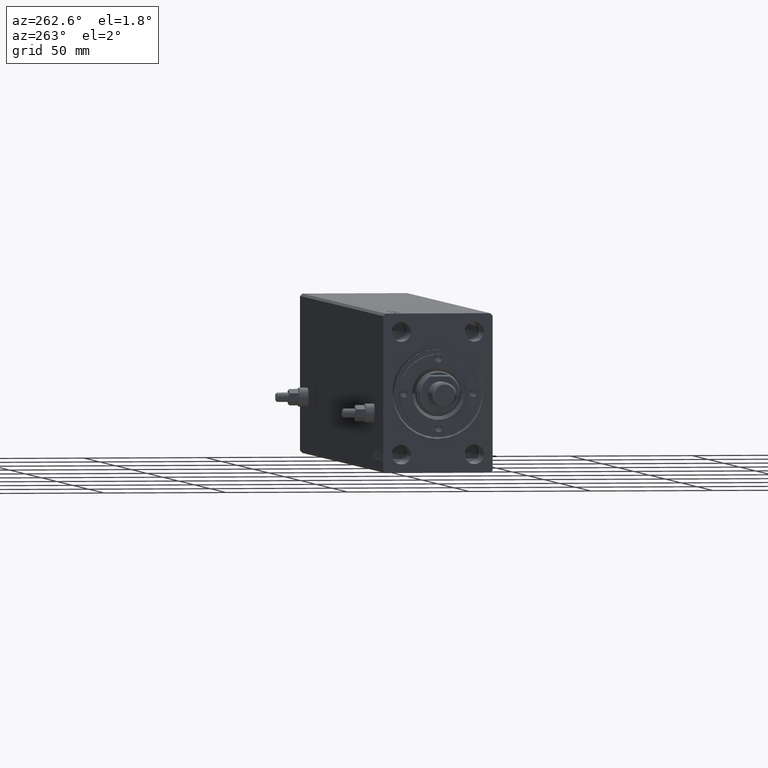
[diagram: clean part render]
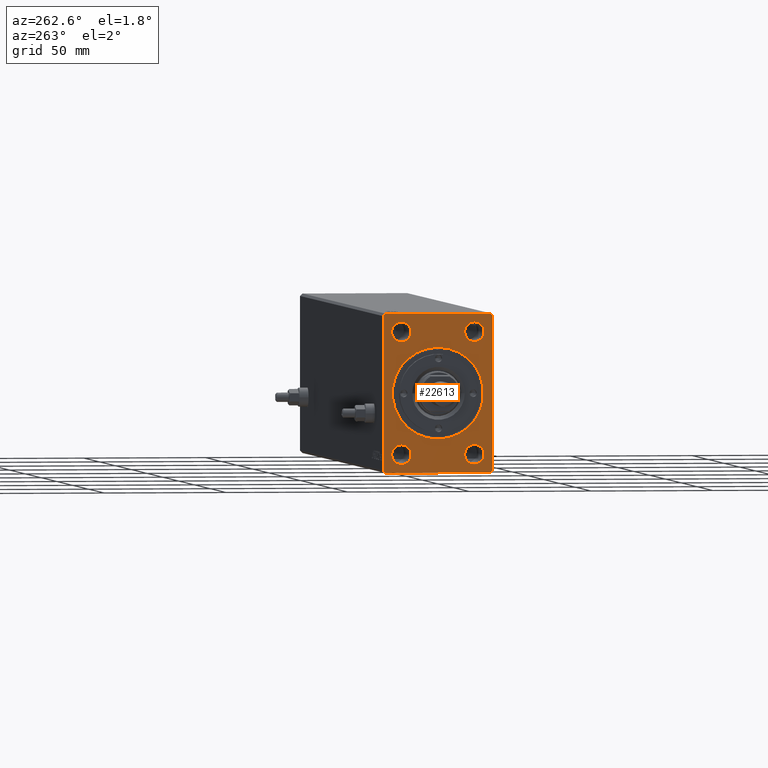
[diagram: same view with one face highlighted and labeled with its STEP entity id]
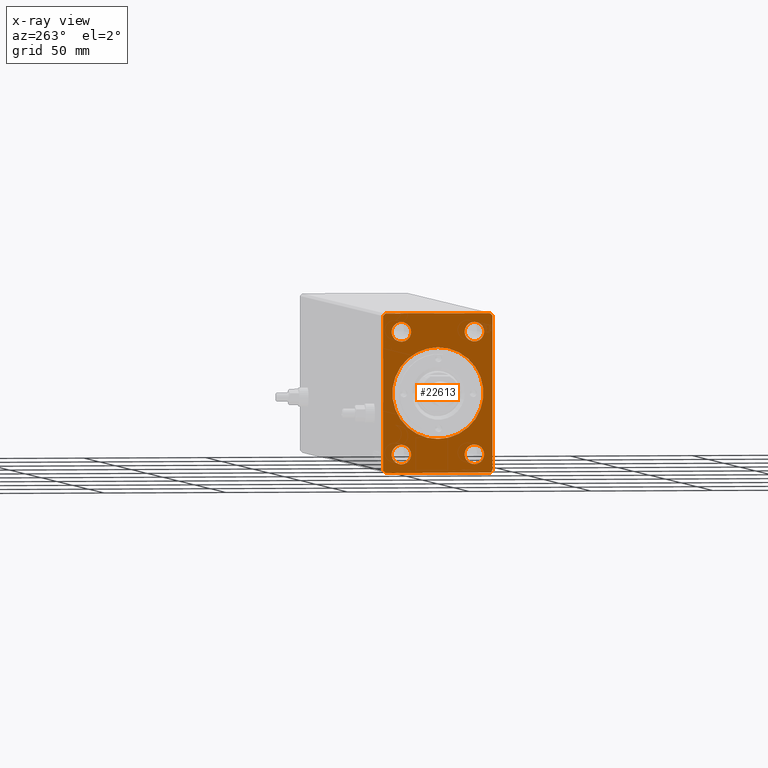
[diagram: x-ray of the same camera — body ghosted, the highlighted face saturated]
A machine part, auxiliary view. The second image highlights one B-rep face of the part: STEP entity #22613.
The next image is the same camera in x-ray: the body ghosted, the highlighted face saturated — about 0% of this face is hidden behind the body in this view.
In plain terms, the highlighted planar face has unit normal (1, 0, 0).
Its self-contained STEP definition (entity closure, byte-faithful):
#179 = DIRECTION ( 'NONE',  ( 0.000000000000000000, 0.000000000000000000, -1.000000000000000000 ) ) ;
#322 = LINE ( 'NONE', #10883, #39934 ) ;
#441 = CARTESIAN_POINT ( 'NONE',  ( 3.061616997868395467E-16, -14.99999999999999645, -24.99999999999999645 ) ) ;
#493 = VERTEX_POINT ( 'NONE', #45307 ) ;
#698 = EDGE_CURVE ( 'NONE', #41762, #39208, #9871, .T. ) ;
#786 = EDGE_CURVE ( 'NONE', #23320, #3482, #4279, .T. ) ;
#1062 = EDGE_CURVE ( 'NONE', #4436, #1959, #19733, .T. ) ;
#1230 = VERTEX_POINT ( 'NONE', #44014 ) ;
#1337 = DIRECTION ( 'NONE',  ( -1.000000000000000000, -0.000000000000000000, -0.000000000000000000 ) ) ;
#1619 = CARTESIAN_POINT ( 'NONE',  ( 3.061616997868395467E-16, 15.00000000000000355, -24.99999999999999289 ) ) ;
#1959 = VERTEX_POINT ( 'NONE', #5871 ) ;
#2300 = CARTESIAN_POINT ( 'NONE',  ( 0.000000000000000000, -21.50000000000001421, 32.50000000000000000 ) ) ;
#2985 = CARTESIAN_POINT ( 'NONE',  ( 0.000000000000000000, 0.000000000000000000, 18.70000000000004903 ) ) ;
#3374 = CARTESIAN_POINT ( 'NONE',  ( 0.000000000000000000, 22.49999999999999645, -31.50000000000000000 ) ) ;
#3482 = VERTEX_POINT ( 'NONE', #28336 ) ;
#3563 = ORIENTED_EDGE ( 'NONE', *, *, #38355, .F. ) ;
#3712 = ORIENTED_EDGE ( 'NONE', *, *, #11786, .T. ) ;
#4279 = CIRCLE ( 'NONE', #43156, 4.000000000000000000 ) ;
#4284 = CARTESIAN_POINT ( 'NONE',  ( 3.061616997868395467E-16, 15.00000000000000355, 25.00000000000000000 ) ) ;
#4436 = VERTEX_POINT ( 'NONE', #24750 ) ;
#4902 = DIRECTION ( 'NONE',  ( 0.000000000000000000, 0.000000000000000000, 1.000000000000000000 ) ) ;
#4919 = DIRECTION ( 'NONE',  ( 0.000000000000000000, 0.000000000000000000, 1.000000000000000000 ) ) ;
#5028 = DIRECTION ( 'NONE',  ( 0.000000000000000000, 0.000000000000000000, -1.000000000000000000 ) ) ;
#5387 = EDGE_CURVE ( 'NONE', #1230, #41762, #31120, .T. ) ;
#5745 = DIRECTION ( 'NONE',  ( 0.000000000000000000, -0.7071067811865474617, -0.7071067811865474617 ) ) ;
#5784 = AXIS2_PLACEMENT_3D ( 'NONE', #1619, #19755, #8515 ) ;
#5871 = CARTESIAN_POINT ( 'NONE',  ( 3.061616997868395467E-16, -14.99999999999999645, 28.99999999999999645 ) ) ;
#6120 = DIRECTION ( 'NONE',  ( 0.000000000000000000, 0.000000000000000000, 1.000000000000000000 ) ) ;
#6181 = DIRECTION ( 'NONE',  ( 0.000000000000000000, 5.507058653894625853E-17, -1.000000000000000000 ) ) ;
#6308 = AXIS2_PLACEMENT_3D ( 'NONE', #9569, #23592, #6120 ) ;
#6371 = DIRECTION ( 'NONE',  ( 0.000000000000000000, 0.000000000000000000, 1.000000000000000000 ) ) ;
#6475 = EDGE_LOOP ( 'NONE', ( #9252, #19798 ) ) ;
#6704 = EDGE_CURVE ( 'NONE', #42137, #30483, #38663, .T. ) ;
#7084 = FACE_BOUND ( 'NONE', #22631, .T. ) ;
#7760 = CARTESIAN_POINT ( 'NONE',  ( 0.000000000000000000, 0.000000000000000000, 0.000000000000000000 ) ) ;
#8515 = DIRECTION ( 'NONE',  ( 0.000000000000000000, 0.000000000000000000, 1.000000000000000000 ) ) ;
#8965 = CARTESIAN_POINT ( 'NONE',  ( 3.061616997868395467E-16, 15.00000000000000355, 21.00000000000000000 ) ) ;
#8973 = VECTOR ( 'NONE', #38012, 1000.000000000000114 ) ;
#9252 = ORIENTED_EDGE ( 'NONE', *, *, #25807, .F. ) ;
#9306 = EDGE_CURVE ( 'NONE', #31770, #1230, #27320, .T. ) ;
#9569 = CARTESIAN_POINT ( 'NONE',  ( 3.061616997868395467E-16, 15.00000000000000355, -24.99999999999999289 ) ) ;
#9816 = CARTESIAN_POINT ( 'NONE',  ( 3.061616997868395467E-16, -14.99999999999999645, 24.99999999999999645 ) ) ;
#9871 = LINE ( 'NONE', #23902, #35834 ) ;
#10069 = DIRECTION ( 'NONE',  ( 1.000000000000000000, 0.000000000000000000, 0.000000000000000000 ) ) ;
#10104 = CARTESIAN_POINT ( 'NONE',  ( 0.000000000000000000, -22.50000000000001776, 31.50000000000000000 ) ) ;
#10294 = PLANE ( 'NONE',  #32118 ) ;
#10615 = EDGE_CURVE ( 'NONE', #1959, #4436, #20770, .T. ) ;
#10883 = CARTESIAN_POINT ( 'NONE',  ( 0.000000000000000000, 21.49999999999999645, -32.50000000000000000 ) ) ;
#10942 = VERTEX_POINT ( 'NONE', #8965 ) ;
#10947 = DIRECTION ( 'NONE',  ( 0.000000000000000000, 0.000000000000000000, 1.000000000000000000 ) ) ;
#11786 = EDGE_CURVE ( 'NONE', #31907, #20196, #36982, .T. ) ;
#13495 = AXIS2_PLACEMENT_3D ( 'NONE', #36507, #15818, #5028 ) ;
#14086 = DIRECTION ( 'NONE',  ( 0.000000000000000000, 0.7071067811865474617, 0.7071067811865474617 ) ) ;
#14661 = ORIENTED_EDGE ( 'NONE', *, *, #23588, .F. ) ;
#14795 = CARTESIAN_POINT ( 'NONE',  ( 3.061616997868395467E-16, 15.00000000000000355, 25.00000000000000000 ) ) ;
#14981 = CARTESIAN_POINT ( 'NONE',  ( 0.000000000000000000, 21.49999999999999645, 32.50000000000000000 ) ) ;
#15799 = DIRECTION ( 'NONE',  ( 0.000000000000000000, 0.000000000000000000, 1.000000000000000000 ) ) ;
#15818 = DIRECTION ( 'NONE',  ( 1.000000000000000000, 0.000000000000000000, 0.000000000000000000 ) ) ;
#16477 = ORIENTED_EDGE ( 'NONE', *, *, #698, .F. ) ;
#16603 = CARTESIAN_POINT ( 'NONE',  ( 3.061616997868395467E-16, 15.00000000000000355, -28.99999999999999289 ) ) ;
#16954 = FACE_BOUND ( 'NONE', #44336, .T. ) ;
#17330 = CIRCLE ( 'NONE', #6308, 4.000000000000000000 ) ;
#17861 = DIRECTION ( 'NONE',  ( 0.000000000000000000, 0.000000000000000000, 1.000000000000000000 ) ) ;
#17882 = FACE_OUTER_BOUND ( 'NONE', #26663, .T. ) ;
#17932 = AXIS2_PLACEMENT_3D ( 'NONE', #29363, #1337, #15799 ) ;
#17984 = CARTESIAN_POINT ( 'NONE',  ( 0.000000000000000000, 22.49999999999999645, 31.50000000000000000 ) ) ;
#18009 = VERTEX_POINT ( 'NONE', #36606 ) ;
#18102 = DIRECTION ( 'NONE',  ( 0.000000000000000000, 0.000000000000000000, -1.000000000000000000 ) ) ;
#18259 = VERTEX_POINT ( 'NONE', #33109 ) ;
#18750 = EDGE_CURVE ( 'NONE', #10942, #493, #33504, .T. ) ;
#19733 = CIRCLE ( 'NONE', #37353, 4.000000000000000000 ) ;
#19755 = DIRECTION ( 'NONE',  ( -1.000000000000000000, -0.000000000000000000, -0.000000000000000000 ) ) ;
#19796 = CARTESIAN_POINT ( 'NONE',  ( 0.000000000000000000, 22.49999999999999645, 31.50000000000000000 ) ) ;
#19798 = ORIENTED_EDGE ( 'NONE', *, *, #43378, .F. ) ;
#20031 = ORIENTED_EDGE ( 'NONE', *, *, #9306, .F. ) ;
#20128 = ORIENTED_EDGE ( 'NONE', *, *, #30754, .F. ) ;
#20196 = VERTEX_POINT ( 'NONE', #39789 ) ;
#20716 = CARTESIAN_POINT ( 'NONE',  ( 0.000000000000000000, 21.49999999999999645, -32.50000000000000000 ) ) ;
#20770 = CIRCLE ( 'NONE', #31797, 4.000000000000000000 ) ;
#21207 = LINE ( 'NONE', #14981, #29960 ) ;
#21814 = EDGE_CURVE ( 'NONE', #20196, #31907, #24065, .T. ) ;
#22613 = ADVANCED_FACE ( 'NONE', ( #7084, #27544, #41997, #16954, #17882, #38564 ), #10294, .F. ) ;
#22631 = EDGE_LOOP ( 'NONE', ( #20128, #43087 ) ) ;
#22685 = CIRCLE ( 'NONE', #5784, 4.000000000000000000 ) ;
#22826 = CARTESIAN_POINT ( 'NONE',  ( 3.061616997868395467E-16, -14.99999999999999645, 24.99999999999999645 ) ) ;
#23320 = VERTEX_POINT ( 'NONE', #35731 ) ;
#23556 = CARTESIAN_POINT ( 'NONE',  ( 0.000000000000000000, -22.50000000000001421, -31.50000000000000711 ) ) ;
#23588 = EDGE_CURVE ( 'NONE', #30483, #32172, #21207, .T. ) ;
#23592 = DIRECTION ( 'NONE',  ( -1.000000000000000000, -0.000000000000000000, -0.000000000000000000 ) ) ;
#23902 = CARTESIAN_POINT ( 'NONE',  ( 0.000000000000000000, -21.50000000000001776, -32.50000000000000711 ) ) ;
#24065 = CIRCLE ( 'NONE', #44686, 18.70000000000004903 ) ;
#24531 = VECTOR ( 'NONE', #10947, 1000.000000000000000 ) ;
#24651 = EDGE_LOOP ( 'NONE', ( #3563, #28375 ) ) ;
#24750 = CARTESIAN_POINT ( 'NONE',  ( 3.061616997868395467E-16, -14.99999999999999645, 20.99999999999999645 ) ) ;
#25402 = DIRECTION ( 'NONE',  ( -1.000000000000000000, -0.000000000000000000, -0.000000000000000000 ) ) ;
#25807 = EDGE_CURVE ( 'NONE', #18259, #29017, #22685, .T. ) ;
#25813 = EDGE_CURVE ( 'NONE', #32172, #31770, #33324, .T. ) ;
#26270 = ORIENTED_EDGE ( 'NONE', *, *, #6704, .F. ) ;
#26663 = EDGE_LOOP ( 'NONE', ( #26270, #38101, #29358, #16477, #31898, #20031, #28308, #14661 ) ) ;
#27320 = LINE ( 'NONE', #41109, #36883 ) ;
#27544 = FACE_BOUND ( 'NONE', #24651, .T. ) ;
#27862 = DIRECTION ( 'NONE',  ( 0.000000000000000000, -0.7071067811865474617, 0.7071067811865474617 ) ) ;
#27978 = CARTESIAN_POINT ( 'NONE',  ( 0.000000000000000000, 0.000000000000000000, 0.000000000000000000 ) ) ;
#28205 = CARTESIAN_POINT ( 'NONE',  ( 0.000000000000000000, 21.49999999999999645, 32.50000000000000000 ) ) ;
#28308 = ORIENTED_EDGE ( 'NONE', *, *, #25813, .F. ) ;
#28336 = CARTESIAN_POINT ( 'NONE',  ( 3.061616997868395467E-16, -14.99999999999999645, -20.99999999999999645 ) ) ;
#28375 = ORIENTED_EDGE ( 'NONE', *, *, #786, .F. ) ;
#29017 = VERTEX_POINT ( 'NONE', #16603 ) ;
#29089 = CARTESIAN_POINT ( 'NONE',  ( 0.000000000000000000, -21.50000000000001421, 32.50000000000000000 ) ) ;
#29358 = ORIENTED_EDGE ( 'NONE', *, *, #37931, .F. ) ;
#29363 = CARTESIAN_POINT ( 'NONE',  ( 3.061616997868395467E-16, -14.99999999999999645, -24.99999999999999645 ) ) ;
#29960 = VECTOR ( 'NONE', #42792, 1000.000000000000000 ) ;
#30483 = VERTEX_POINT ( 'NONE', #28205 ) ;
#30754 = EDGE_CURVE ( 'NONE', #493, #10942, #44941, .T. ) ;
#31120 = LINE ( 'NONE', #23556, #8973 ) ;
#31770 = VERTEX_POINT ( 'NONE', #10104 ) ;
#31797 = AXIS2_PLACEMENT_3D ( 'NONE', #22826, #36379, #4902 ) ;
#31898 = ORIENTED_EDGE ( 'NONE', *, *, #5387, .F. ) ;
#31907 = VERTEX_POINT ( 'NONE', #2985 ) ;
#32118 = AXIS2_PLACEMENT_3D ( 'NONE', #27978, #10069, #179 ) ;
#32172 = VERTEX_POINT ( 'NONE', #29089 ) ;
#32342 = ORIENTED_EDGE ( 'NONE', *, *, #21814, .T. ) ;
#33109 = CARTESIAN_POINT ( 'NONE',  ( 3.061616997868395467E-16, 15.00000000000000355, -20.99999999999999289 ) ) ;
#33324 = LINE ( 'NONE', #2300, #38822 ) ;
#33504 = CIRCLE ( 'NONE', #43049, 4.000000000000000000 ) ;
#33874 = ORIENTED_EDGE ( 'NONE', *, *, #10615, .F. ) ;
#34671 = DIRECTION ( 'NONE',  ( 0.000000000000000000, 1.000000000000000000, 1.613696256722610912E-16 ) ) ;
#34777 = CIRCLE ( 'NONE', #17932, 4.000000000000000000 ) ;
#35552 = DIRECTION ( 'NONE',  ( 1.000000000000000000, 0.000000000000000000, 0.000000000000000000 ) ) ;
#35731 = CARTESIAN_POINT ( 'NONE',  ( 3.061616997868395467E-16, -14.99999999999999645, -28.99999999999999645 ) ) ;
#35754 = LINE ( 'NONE', #3374, #24531 ) ;
#35834 = VECTOR ( 'NONE', #34671, 1000.000000000000000 ) ;
#36379 = DIRECTION ( 'NONE',  ( -1.000000000000000000, -0.000000000000000000, -0.000000000000000000 ) ) ;
#36507 = CARTESIAN_POINT ( 'NONE',  ( 0.000000000000000000, 0.000000000000000000, 0.000000000000000000 ) ) ;
#36606 = CARTESIAN_POINT ( 'NONE',  ( 0.000000000000000000, 22.49999999999999645, -31.50000000000000000 ) ) ;
#36883 = VECTOR ( 'NONE', #6181, 1000.000000000000000 ) ;
#36914 = ORIENTED_EDGE ( 'NONE', *, *, #1062, .F. ) ;
#36982 = CIRCLE ( 'NONE', #13495, 18.70000000000004903 ) ;
#37353 = AXIS2_PLACEMENT_3D ( 'NONE', #9816, #37851, #6371 ) ;
#37851 = DIRECTION ( 'NONE',  ( -1.000000000000000000, -0.000000000000000000, -0.000000000000000000 ) ) ;
#37931 = EDGE_CURVE ( 'NONE', #39208, #18009, #322, .T. ) ;
#38012 = DIRECTION ( 'NONE',  ( 0.000000000000000000, 0.7071067811865451302, -0.7071067811865500152 ) ) ;
#38101 = ORIENTED_EDGE ( 'NONE', *, *, #38626, .F. ) ;
#38347 = AXIS2_PLACEMENT_3D ( 'NONE', #14795, #25402, #4919 ) ;
#38355 = EDGE_CURVE ( 'NONE', #3482, #23320, #34777, .T. ) ;
#38564 = FACE_BOUND ( 'NONE', #43944, .T. ) ;
#38590 = DIRECTION ( 'NONE',  ( 0.000000000000000000, 0.000000000000000000, 1.000000000000000000 ) ) ;
#38626 = EDGE_CURVE ( 'NONE', #18009, #42137, #35754, .T. ) ;
#38663 = LINE ( 'NONE', #17984, #39812 ) ;
#38822 = VECTOR ( 'NONE', #5745, 1000.000000000000114 ) ;
#39208 = VERTEX_POINT ( 'NONE', #20716 ) ;
#39789 = CARTESIAN_POINT ( 'NONE',  ( 0.000000000000000000, 2.290089514405556421E-15, -18.70000000000004903 ) ) ;
#39812 = VECTOR ( 'NONE', #27862, 1000.000000000000114 ) ;
#39865 = CARTESIAN_POINT ( 'NONE',  ( 0.000000000000000000, -21.50000000000001776, -32.50000000000000711 ) ) ;
#39934 = VECTOR ( 'NONE', #14086, 1000.000000000000114 ) ;
#41109 = CARTESIAN_POINT ( 'NONE',  ( 0.000000000000000000, -22.50000000000001776, 31.50000000000000000 ) ) ;
#41762 = VERTEX_POINT ( 'NONE', #39865 ) ;
#41997 = FACE_BOUND ( 'NONE', #6475, .T. ) ;
#42137 = VERTEX_POINT ( 'NONE', #19796 ) ;
#42217 = DIRECTION ( 'NONE',  ( -1.000000000000000000, -0.000000000000000000, -0.000000000000000000 ) ) ;
#42705 = DIRECTION ( 'NONE',  ( -1.000000000000000000, -0.000000000000000000, -0.000000000000000000 ) ) ;
#42792 = DIRECTION ( 'NONE',  ( 0.000000000000000000, -1.000000000000000000, 0.000000000000000000 ) ) ;
#43049 = AXIS2_PLACEMENT_3D ( 'NONE', #4284, #42217, #17861 ) ;
#43087 = ORIENTED_EDGE ( 'NONE', *, *, #18750, .F. ) ;
#43156 = AXIS2_PLACEMENT_3D ( 'NONE', #441, #42705, #38590 ) ;
#43378 = EDGE_CURVE ( 'NONE', #29017, #18259, #17330, .T. ) ;
#43944 = EDGE_LOOP ( 'NONE', ( #33874, #36914 ) ) ;
#44014 = CARTESIAN_POINT ( 'NONE',  ( 0.000000000000000000, -22.50000000000001421, -31.50000000000000711 ) ) ;
#44336 = EDGE_LOOP ( 'NONE', ( #3712, #32342 ) ) ;
#44686 = AXIS2_PLACEMENT_3D ( 'NONE', #7760, #35552, #18102 ) ;
#44941 = CIRCLE ( 'NONE', #38347, 4.000000000000000000 ) ;
#45307 = CARTESIAN_POINT ( 'NONE',  ( 3.061616997868395467E-16, 15.00000000000000355, 29.00000000000000000 ) ) ;